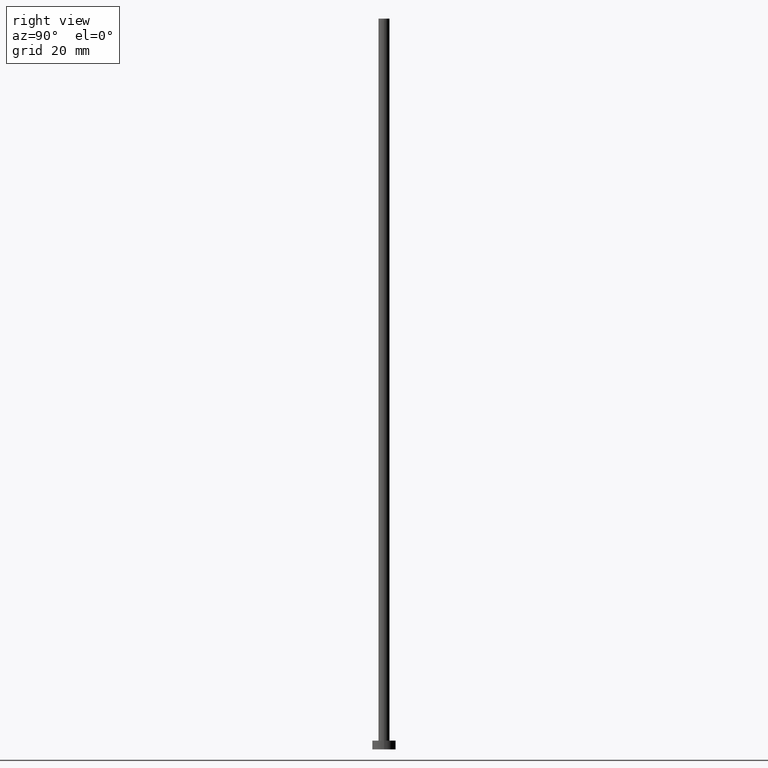
[diagram: clean part render]
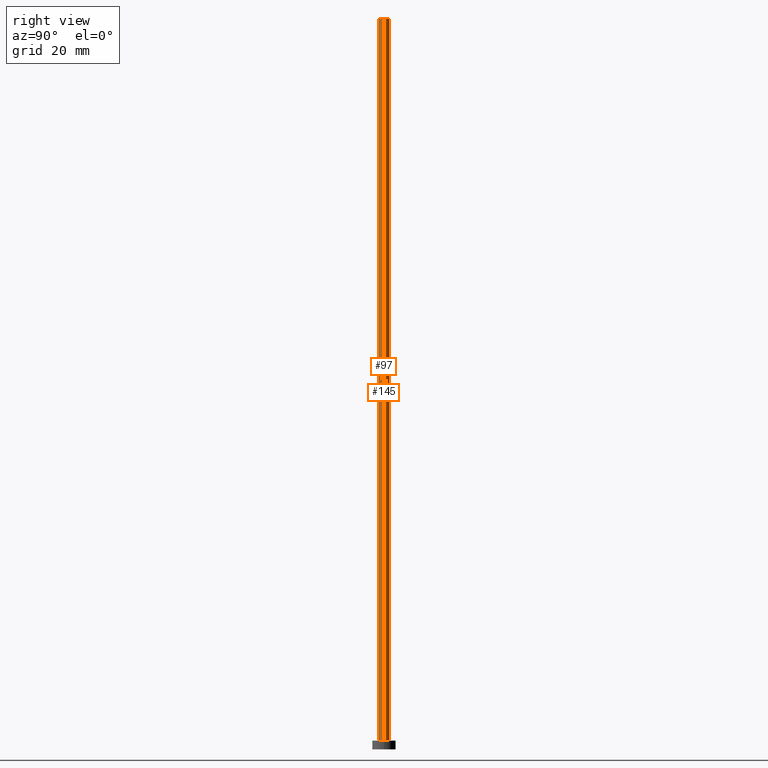
[diagram: same view with one multi-face feature highlighted, each face labeled with its STEP entity id]
A machine part, right view. The highlighted faces form ONE feature: a constant-radius fillet chain: 2 tangent blend faces with common blend radius 0.95 mm. The faces share edges in the B-rep.
Their STEP definitions:
[1] entity #97 (Cylinder):
#3 = CARTESIAN_POINT ( 'NONE',  ( 0.9499999999999999556, 1.163414459189985682E-16, 125.0000000000000000 ) ) ;
#12 = ORIENTED_EDGE ( 'NONE', *, *, #115, .F. ) ;
#13 = LINE ( 'NONE', #29, #208 ) ;
#18 = CYLINDRICAL_SURFACE ( 'NONE', #243, 0.9499999999999999556 ) ;
#22 = LINE ( 'NONE', #3, #162 ) ;
#26 = CIRCLE ( 'NONE', #50, 0.9499999999999999556 ) ;
#29 = CARTESIAN_POINT ( 'NONE',  ( -0.9499999999999999556, 0.000000000000000000, 125.0000000000000000 ) ) ;
#30 = CARTESIAN_POINT ( 'NONE',  ( 0.9499999999999999556, 1.163414459189985682E-16, 1.500000000000000000 ) ) ;
#50 = AXIS2_PLACEMENT_3D ( 'NONE', #61, #68, #183 ) ;
#52 = CARTESIAN_POINT ( 'NONE',  ( 0.000000000000000000, 0.000000000000000000, 1.500000000000000000 ) ) ;
#54 = ORIENTED_EDGE ( 'NONE', *, *, #134, .T. ) ;
#61 = CARTESIAN_POINT ( 'NONE',  ( 0.000000000000000000, 0.000000000000000000, 125.0000000000000000 ) ) ;
#62 = DIRECTION ( 'NONE',  ( -0.000000000000000000, -0.000000000000000000, -1.000000000000000000 ) ) ;
#68 = DIRECTION ( 'NONE',  ( 0.000000000000000000, 0.000000000000000000, 1.000000000000000000 ) ) ;
#69 = EDGE_CURVE ( 'NONE', #245, #231, #13, .T. ) ;
#85 = DIRECTION ( 'NONE',  ( -0.000000000000000000, -0.000000000000000000, -1.000000000000000000 ) ) ;
#97 = ADVANCED_FACE ( 'NONE', ( #235 ), #18, .T. ) ;
#115 = EDGE_CURVE ( 'NONE', #138, #189, #22, .T. ) ;
#121 = AXIS2_PLACEMENT_3D ( 'NONE', #52, #180, #199 ) ;
#132 = CARTESIAN_POINT ( 'NONE',  ( 0.9499999999999999556, 1.163414459189985682E-16, 125.0000000000000000 ) ) ;
#134 = EDGE_CURVE ( 'NONE', #231, #189, #188, .T. ) ;
#138 = VERTEX_POINT ( 'NONE', #132 ) ;
#153 = DIRECTION ( 'NONE',  ( -0.000000000000000000, -0.000000000000000000, -1.000000000000000000 ) ) ;
#162 = VECTOR ( 'NONE', #153, 1000.000000000000000 ) ;
#176 = ORIENTED_EDGE ( 'NONE', *, *, #69, .T. ) ;
#180 = DIRECTION ( 'NONE',  ( 0.000000000000000000, 0.000000000000000000, 1.000000000000000000 ) ) ;
#181 = EDGE_LOOP ( 'NONE', ( #12, #226, #176, #54 ) ) ;
#183 = DIRECTION ( 'NONE',  ( 1.000000000000000000, 0.000000000000000000, 0.000000000000000000 ) ) ;
#188 = CIRCLE ( 'NONE', #121, 0.9499999999999999556 ) ;
#189 = VERTEX_POINT ( 'NONE', #30 ) ;
#193 = CARTESIAN_POINT ( 'NONE',  ( 0.000000000000000000, 0.000000000000000000, 125.0000000000000000 ) ) ;
#199 = DIRECTION ( 'NONE',  ( 1.000000000000000000, 0.000000000000000000, 0.000000000000000000 ) ) ;
#208 = VECTOR ( 'NONE', #62, 1000.000000000000000 ) ;
#213 = EDGE_CURVE ( 'NONE', #245, #138, #26, .T. ) ;
#226 = ORIENTED_EDGE ( 'NONE', *, *, #213, .F. ) ;
#230 = CARTESIAN_POINT ( 'NONE',  ( -0.9499999999999999556, 0.000000000000000000, 125.0000000000000000 ) ) ;
#231 = VERTEX_POINT ( 'NONE', #247 ) ;
#235 = FACE_OUTER_BOUND ( 'NONE', #181, .T. ) ;
#243 = AXIS2_PLACEMENT_3D ( 'NONE', #193, #85, #251 ) ;
#245 = VERTEX_POINT ( 'NONE', #230 ) ;
#247 = CARTESIAN_POINT ( 'NONE',  ( -0.9499999999999999556, 0.000000000000000000, 1.500000000000000000 ) ) ;
#251 = DIRECTION ( 'NONE',  ( -1.000000000000000000, 0.000000000000000000, 0.000000000000000000 ) ) ;
[2] entity #145 (Cylinder):
#1 = CYLINDRICAL_SURFACE ( 'NONE', #80, 0.9499999999999999556 ) ;
#3 = CARTESIAN_POINT ( 'NONE',  ( 0.9499999999999999556, 1.163414459189985682E-16, 125.0000000000000000 ) ) ;
#9 = DIRECTION ( 'NONE',  ( 0.000000000000000000, 0.000000000000000000, 1.000000000000000000 ) ) ;
#13 = LINE ( 'NONE', #29, #208 ) ;
#15 = ORIENTED_EDGE ( 'NONE', *, *, #115, .T. ) ;
#22 = LINE ( 'NONE', #3, #162 ) ;
#25 = DIRECTION ( 'NONE',  ( -0.000000000000000000, -0.000000000000000000, -1.000000000000000000 ) ) ;
#27 = FACE_OUTER_BOUND ( 'NONE', #72, .T. ) ;
#28 = EDGE_CURVE ( 'NONE', #138, #245, #107, .T. ) ;
#29 = CARTESIAN_POINT ( 'NONE',  ( -0.9499999999999999556, 0.000000000000000000, 125.0000000000000000 ) ) ;
#30 = CARTESIAN_POINT ( 'NONE',  ( 0.9499999999999999556, 1.163414459189985682E-16, 1.500000000000000000 ) ) ;
#36 = EDGE_CURVE ( 'NONE', #189, #231, #55, .T. ) ;
#55 = CIRCLE ( 'NONE', #212, 0.9499999999999999556 ) ;
#57 = DIRECTION ( 'NONE',  ( -1.000000000000000000, 0.000000000000000000, 0.000000000000000000 ) ) ;
#62 = DIRECTION ( 'NONE',  ( -0.000000000000000000, -0.000000000000000000, -1.000000000000000000 ) ) ;
#69 = EDGE_CURVE ( 'NONE', #245, #231, #13, .T. ) ;
#72 = EDGE_LOOP ( 'NONE', ( #89, #15, #106, #204 ) ) ;
#77 = CARTESIAN_POINT ( 'NONE',  ( 0.000000000000000000, 0.000000000000000000, 1.500000000000000000 ) ) ;
#79 = CARTESIAN_POINT ( 'NONE',  ( 0.000000000000000000, 0.000000000000000000, 125.0000000000000000 ) ) ;
#80 = AXIS2_PLACEMENT_3D ( 'NONE', #105, #25, #57 ) ;
#89 = ORIENTED_EDGE ( 'NONE', *, *, #28, .F. ) ;
#105 = CARTESIAN_POINT ( 'NONE',  ( 0.000000000000000000, 0.000000000000000000, 125.0000000000000000 ) ) ;
#106 = ORIENTED_EDGE ( 'NONE', *, *, #36, .T. ) ;
#107 = CIRCLE ( 'NONE', #169, 0.9499999999999999556 ) ;
#115 = EDGE_CURVE ( 'NONE', #138, #189, #22, .T. ) ;
#132 = CARTESIAN_POINT ( 'NONE',  ( 0.9499999999999999556, 1.163414459189985682E-16, 125.0000000000000000 ) ) ;
#136 = DIRECTION ( 'NONE',  ( 1.000000000000000000, 0.000000000000000000, 0.000000000000000000 ) ) ;
#138 = VERTEX_POINT ( 'NONE', #132 ) ;
#145 = ADVANCED_FACE ( 'NONE', ( #27 ), #1, .T. ) ;
#153 = DIRECTION ( 'NONE',  ( -0.000000000000000000, -0.000000000000000000, -1.000000000000000000 ) ) ;
#159 = DIRECTION ( 'NONE',  ( 0.000000000000000000, 0.000000000000000000, 1.000000000000000000 ) ) ;
#162 = VECTOR ( 'NONE', #153, 1000.000000000000000 ) ;
#169 = AXIS2_PLACEMENT_3D ( 'NONE', #79, #9, #223 ) ;
#189 = VERTEX_POINT ( 'NONE', #30 ) ;
#204 = ORIENTED_EDGE ( 'NONE', *, *, #69, .F. ) ;
#208 = VECTOR ( 'NONE', #62, 1000.000000000000000 ) ;
#212 = AXIS2_PLACEMENT_3D ( 'NONE', #77, #159, #136 ) ;
#223 = DIRECTION ( 'NONE',  ( 1.000000000000000000, 0.000000000000000000, 0.000000000000000000 ) ) ;
#230 = CARTESIAN_POINT ( 'NONE',  ( -0.9499999999999999556, 0.000000000000000000, 125.0000000000000000 ) ) ;
#231 = VERTEX_POINT ( 'NONE', #247 ) ;
#245 = VERTEX_POINT ( 'NONE', #230 ) ;
#247 = CARTESIAN_POINT ( 'NONE',  ( -0.9499999999999999556, 0.000000000000000000, 1.500000000000000000 ) ) ;